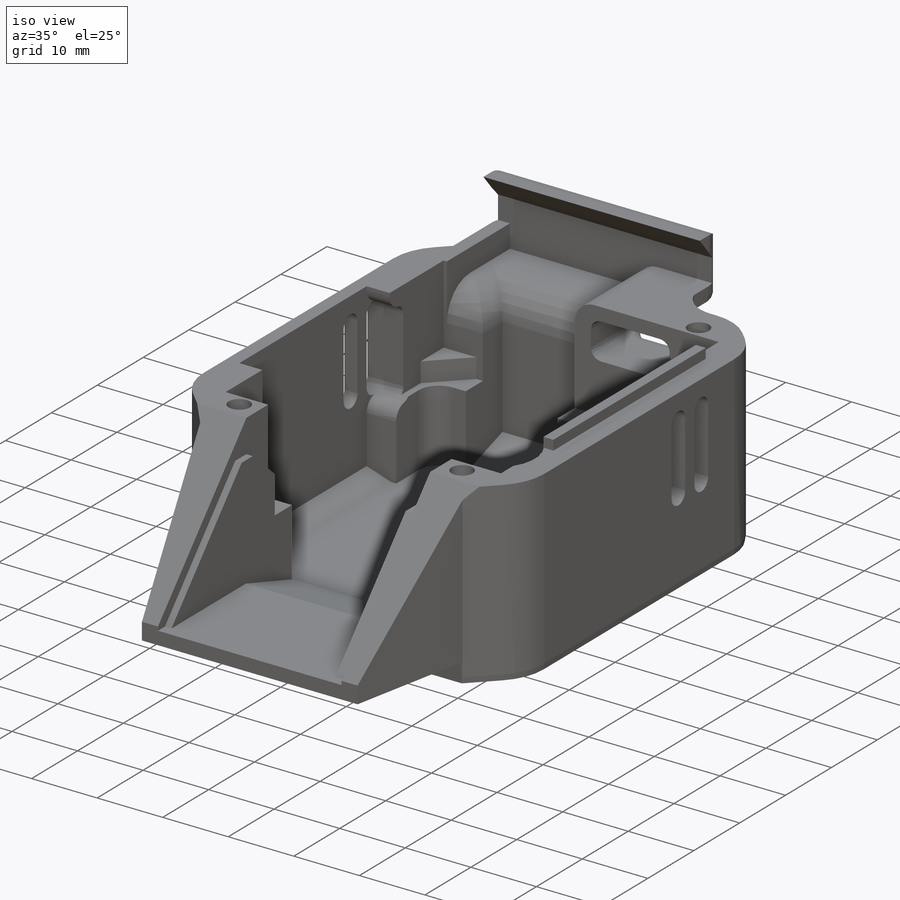
[diagram: iso view]
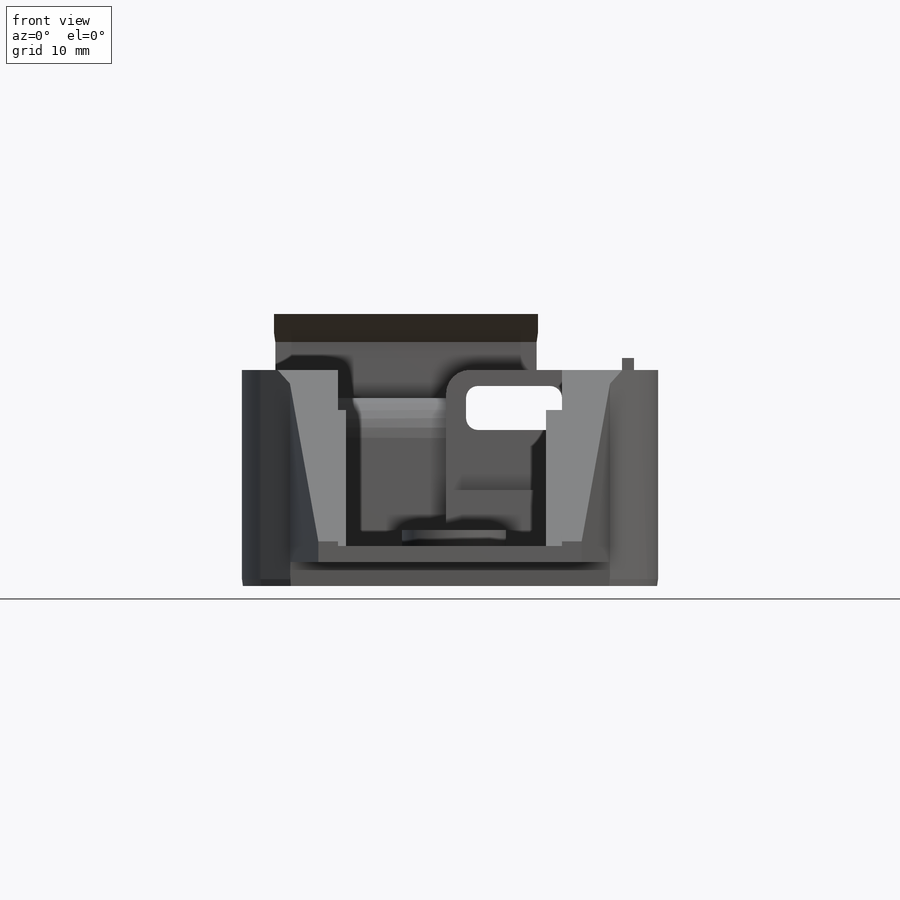
[diagram: front view]
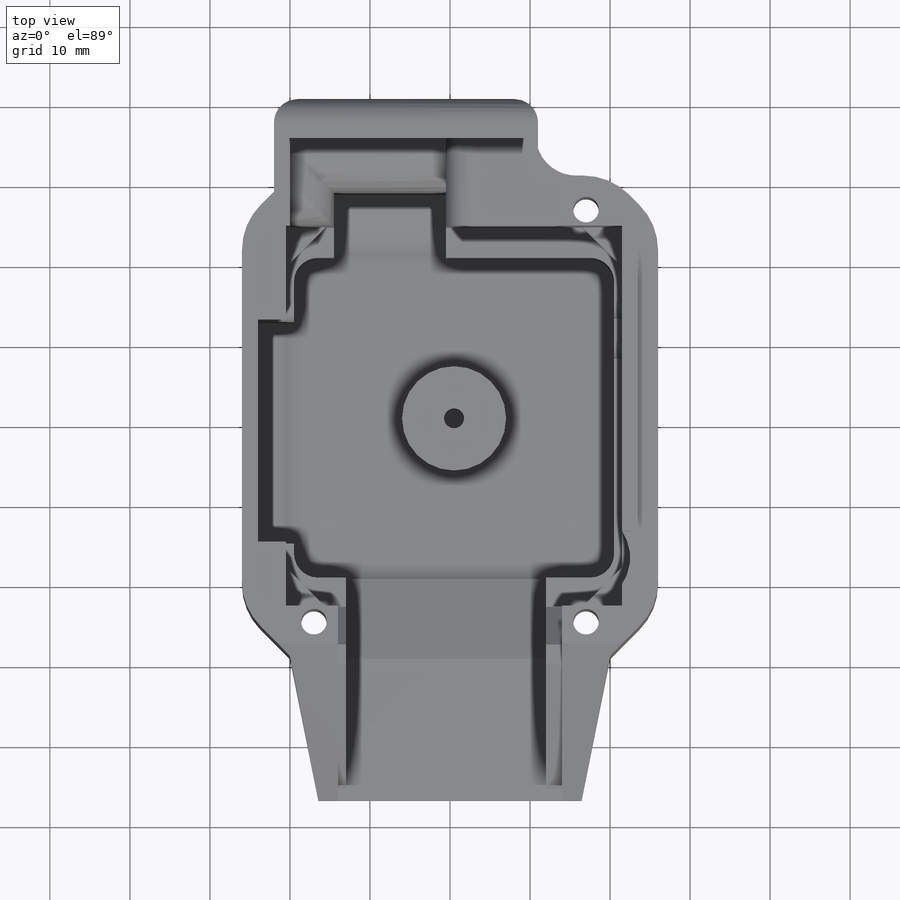
[diagram: top view]
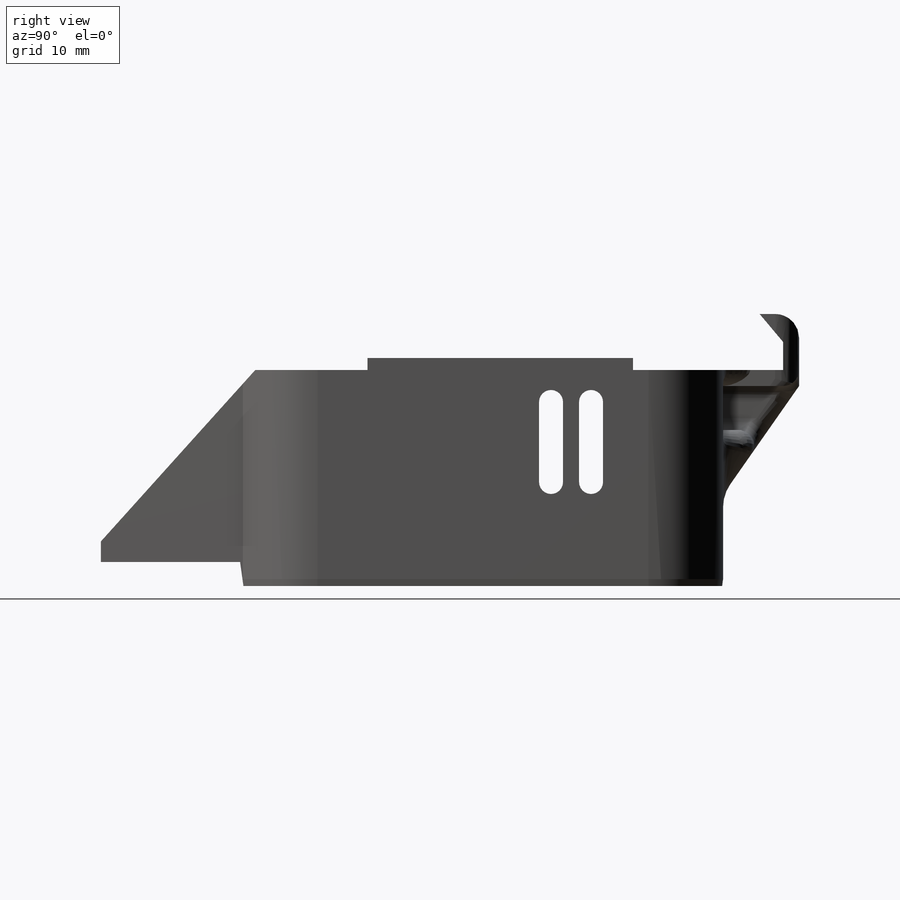
[diagram: right view]
SOLIDWORKS PART (.sldprt)
format: sldprt  version: not decoded by parser v0  size: 1,053,184 bytes
history: native  units: mm
features: sketch x25, cut_extrude x18, fillet x8, extrude x7, chamfer x2, material x1 (+12 scaffold rows collapsed)
feature tree (73):
  scaffold x12  (default folders/planes/origin — collapsed)
  material  "Material <not specified>"
  sketch  "Sketch1"  dims[c1.D1=48.0mm c1.D2=25.0mm c1.D3=52.0mm c1.D4=26.0mm c1.D5=~33.554803mm c2.D5=90.0deg c3.D5=6.0mm c3.D6=6.0mm c3.D7=6.0mm c3.D8=32.0mm c3.D9=26.0mm c3.D10=16.0mm c3.D11=6.0mm c3.D12=6.0mm c3.D13=6.0mm]
  extrude  "Boss-Extrude1"  Depth=24mm
  sketch  "Sketch2"  dims[c1.D5=3.0mm c1.D6=3.0mm c1.D7=3.0mm c1.D8=3.0mm c1.D1=~31.804458mm c1.D2=~46.037935mm c2.D1=40.0mm c2.D2=40.0mm c2.D3=19.5mm c2.D4=19.0mm]
  cut_extrude  "Cut-Extrude1"  Depth=23mm
  sketch  "Sketch3"  dims[c1.D1=~48.963137mm c1.D2=~42.763233mm c2.D1=42.0mm c2.D2=46.5mm c2.D3=21.0mm c2.D4=46.5mm c3.D1=42.0mm c3.D2=21.0mm c3.D3=47.5mm c3.D4=5.0mm c3.D5=5.0mm c3.D6=5.0mm c3.D7=5.0mm c3.D8=3.75mm c3.D9=3.75mm c4.D2=1.0mm]
  cut_extrude  "Cut-Extrude2"  Depth=15mm
  sketch  "Sketch4"  dims[D1=~55.849066mm D2=~49.219967mm]
  cut_extrude  "Cut-Extrude3"  Depth=12mm
  sketch  "Sketch5"  dims[c1.D1=~23.461139mm c1.D2=~21.020387mm c2.D1=24.0mm c2.D2=28.0mm c2.D3=7.0mm c2.D4=7.0mm c3.D3=2.0mm c3.D4=2.0mm]
  cut_extrude  "Cut-Extrude4"  Depth=5mm
  sketch  "Sketch6"  dims[c1.D1=~17.922331mm c2.D1=42.0deg c2.D2=2.0mm c3.D1=1.5mm c3.D3=~26.958251mm c4.D3=42.0deg c4.D4=24.5mm]
  cut_extrude  "Cut-Extrude5"  [1 undecoded]
  sketch  "Sketch7"  dims[c1.D1=~31.677659mm c1.D2=~22.189157mm c2.D1=1.0mm c2.D2=2.0mm]
  cut_extrude  "Cut-Extrude6"  Depth=17mm
  sketch  "Sketch8"  dims[D1=2.5mm D2=13.0mm D3=20.0mm D4=20.0mm D5=20.0mm]
  extrude  "Boss-Extrude2"  Depth=6mm
  sketch  "Sketch9"  dims[D1=1.5mm D2=~43.751353mm]
  cut_extrude  "Cut-Extrude7"  [1 undecoded]
  sketch  "Sketch10"  dims[c1.D1=6.25mm c1.D2=~8.608286mm c2.D1=12.0mm c2.D2=7.5mm]
  cut_extrude  "Cut-Extrude8"  Depth=5.5mm
  fillet  "Fillet1"  Radius=1.5mm
  sketch  "Sketch11"  dims[D1=12.0mm D2=5.0mm D3=6.0mm]
  cut_extrude  "Cut-Extrude9"  [1 undecoded]
  sketch  "Sketch12"  dims[c1.D1=~33.183375mm c1.D2=~1.396265mm c2.D1=1.5mm]
  extrude  "Boss-Extrude3"  Depth=1.5mm
  sketch  "Sketch13"  dims[c1.D1=3.2mm c1.D2=2.0mm c1.D3=2.0mm c1.D4=1.0mm c1.D5=1.0mm c2.D4=9.0mm c2.D5=9.0mm c2.D6=4.25mm c2.D7=~51.509708mm c3.D4=9.0mm c3.D8=2.0mm c3.D3=2.0mm c3.D6=~2.810012mm c4.D3=3.5mm c4.D6=8.0mm]
  cut_extrude  "Cut-Extrude10"  [1 undecoded]
  sketch  "Sketch14"  dims[D1=6.0mm]
  cut_extrude  "Cut-Extrude11"  Depth=5mm
  fillet  "Fillet2"  Radius=8mm
  sketch  "Sketch15"  dims[c1.D1=~4.06431mm c1.D2=12.2806mm c2.D1=2.0mm c2.D2=8.0mm c2.D3=14.0mm c2.D4=~32.658238mm c2.D5=~6.478401mm c3.D4=~25.824857mm c3.D5=~20.92888mm c4.D4=2.0mm c4.D5=10.0mm c4.D6=10.0mm c4.D2=11.5mm c5.D5=18.0mm]
  cut_extrude  "Cut-Extrude15"  [1 undecoded]
  sketch  "Sketch17"  dims[D1=~8.983436mm D2=2.0mm D3=10.0mm D4=4.0mm D5=15.0mm]
  cut_extrude  "Cut-Extrude17"  [1 undecoded]
  sketch  "Sketch19"  dims[D2=~0.216953mm D1=0.2mm]
  extrude  "Boss-Extrude4"  Depth=3mm
  chamfer  "Chamfer1"  Distance=0.5mm Angle=82deg
  sketch  "Sketch20"  dims[c1.D1=3.0mm c1.D2=3.0mm c1.D3=3.0mm c1.D4=3.0mm c2.D1=~44.017626mm c2.D2=~43.218919mm]
  cut_extrude  "Cut-Extrude19"  Depth=3mm
  sketch  "Sketch21"  dims[D1=~16.016694mm]
  cut_extrude  "Cut-Extrude20"  Depth=3mm
  chamfer  "Chamfer2"  Distance=10mm Angle=18deg
  sketch  "Sketch22"  dims[D1=~6.228637mm]
  cut_extrude  "Cut-Extrude21"  Depth=0.5mm
  sketch  "Sketch24"  dims[c1.D1=9.0mm c1.D2=~24.782406mm c2.D2=35.0deg c2.D3=2.0mm c2.D1=9.5mm c3.D2=2.0mm c3.D4=~13.709628mm c4.D4=35.0deg]
  extrude  "Boss-Extrude5"  Depth=4mm
  sketch  "Sketch23"  dims[c1.D1=6.25mm c1.D2=~17.660297mm c2.D1=6.0mm c2.D2=18.0mm c2.D3=2.0mm c3.D2=2.0mm]
  cut_extrude  "Cut-Extrude22"  Depth=3.5mm
  sketch  "Sketch26"  dims[c1.D1=3.5mm c1.D2=5.0mm c1.D3=50.0deg c2.D2=7.0mm]
  extrude  "Boss-Extrude7"  [1 undecoded]
  fillet  "Fillet3"  Radius=3mm
  sketch  "Sketch28"  dims[c1.D1=~10.116899mm c1.D2=~8.355414mm c2.D1=8.0mm]
  extrude  "Boss-Extrude8"  [1 undecoded]
  sketch  "Sketch27"  dims[c1.D1=1.5mm c1.D2=1.5mm c1.D3=1.5mm c1.D4=1.5mm c2.D1=~8.184379mm c2.D2=~14.160785mm]
  cut_extrude  "Cut-Extrude23"  [1 undecoded]
  fillet  "Fillet4"  Radius=3mm
  fillet  "Fillet6"  Radius=3mm
  fillet  "Fillet7"  Radius=5mm
  fillet  "Fillet8"  Radius=2mm
  fillet  "Fillet9"  Radius=2mm
decode coverage: 51 of 60 modeling features carry decoded parameters
note: ~ marks probable driven/reference dimensions
note: 9 parameter values undecoded
summary: no parameter record found for 9 features
note: suppression state not decoded; provenance and decode notes live in map.json
